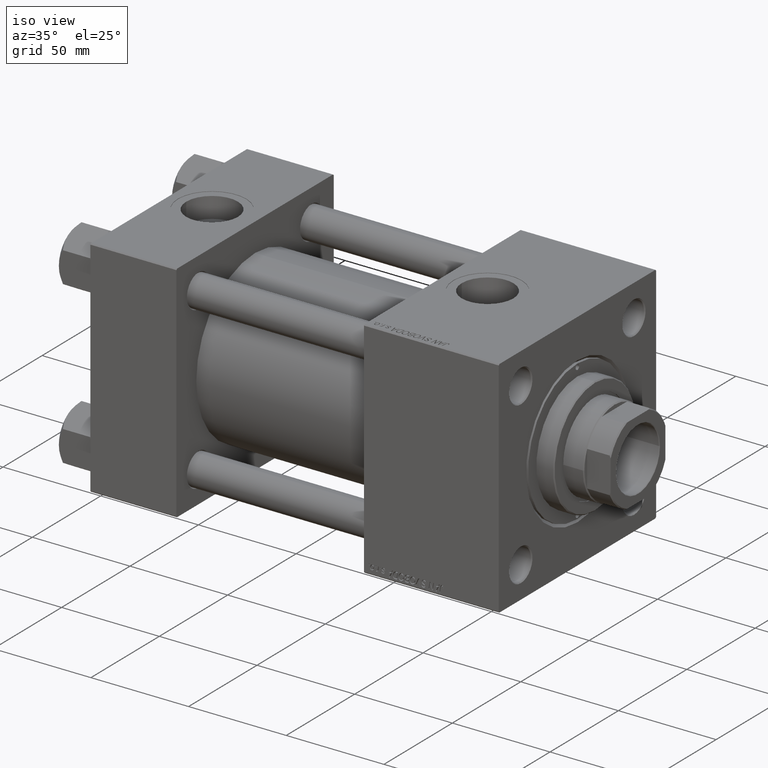
[diagram: clean part render]
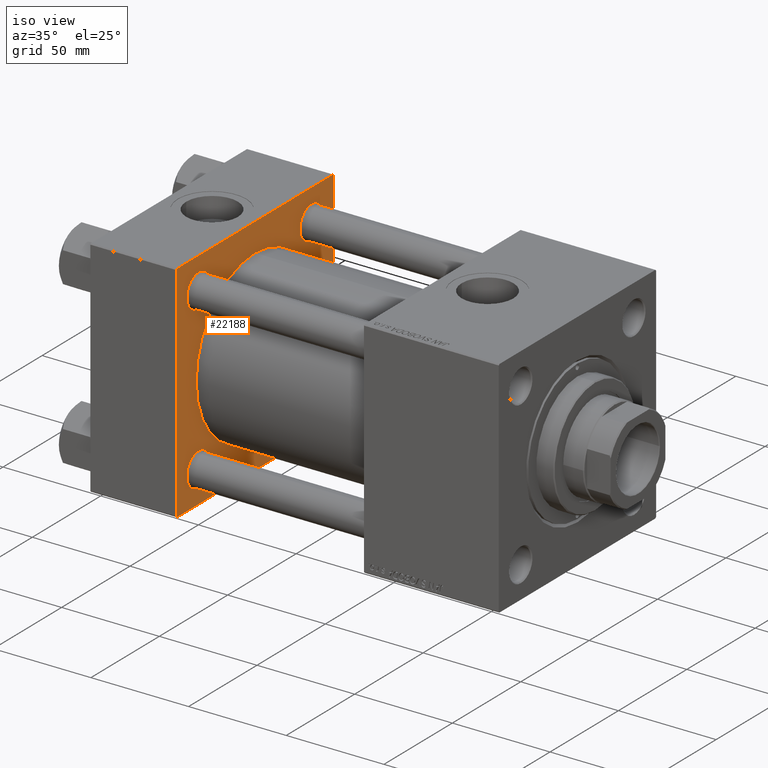
[diagram: same view with one face highlighted and labeled with its STEP entity id]
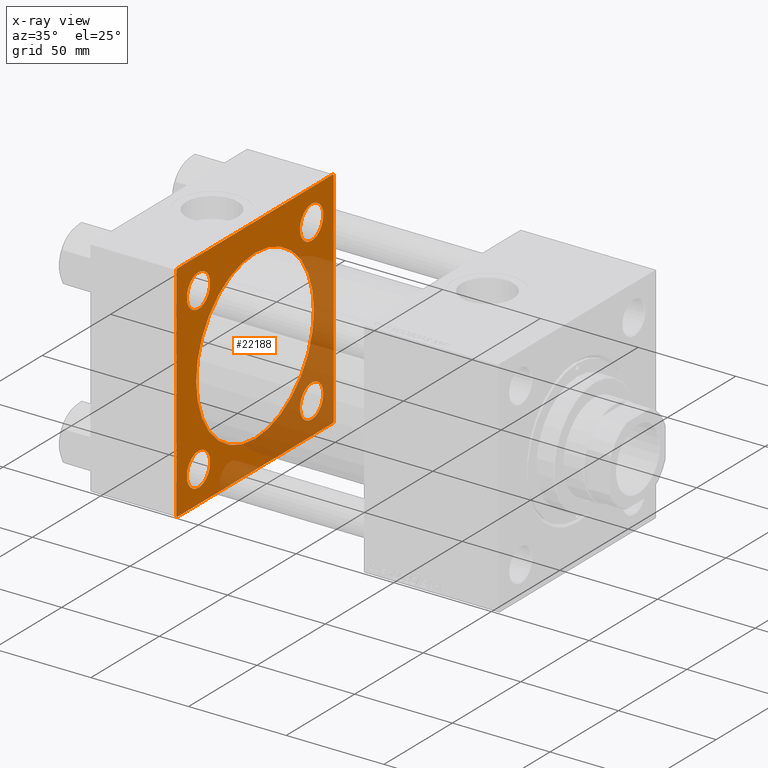
[diagram: x-ray of the same camera — body ghosted, the highlighted face saturated]
A machine part, iso view. The second image highlights one B-rep face of the part: STEP entity #22188.
The next image is the same camera in x-ray: the body ghosted, the highlighted face saturated — about 34% of this face is hidden behind the body in this view.
In plain terms, the highlighted planar face has unit normal (-1, 0, 0).
Its self-contained STEP definition (entity closure, byte-faithful):
#441 = AXIS2_PLACEMENT_3D ( 'NONE', #17049, #36836, #25272 ) ;
#616 = DIRECTION ( 'NONE',  ( -1.000000000000000000, 0.000000000000000000, -0.000000000000000000 ) ) ;
#867 = VERTEX_POINT ( 'NONE', #42806 ) ;
#1105 = CARTESIAN_POINT ( 'NONE',  ( 44.00000000000000000, 57.49999999999999289, -57.00000000000000711 ) ) ;
#1418 = LINE ( 'NONE', #36351, #20701 ) ;
#1678 = CARTESIAN_POINT ( 'NONE',  ( 44.00000000000000000, -41.34999999999998721, 32.85000000000000142 ) ) ;
#2090 = ORIENTED_EDGE ( 'NONE', *, *, #38002, .T. ) ;
#2094 = EDGE_CURVE ( 'NONE', #13009, #36170, #38209, .T. ) ;
#2280 = VERTEX_POINT ( 'NONE', #11557 ) ;
#2304 = DIRECTION ( 'NONE',  ( -1.000000000000000000, 0.000000000000000000, -0.000000000000000000 ) ) ;
#2826 = AXIS2_PLACEMENT_3D ( 'NONE', #31763, #48455, #40748 ) ;
#3234 = DIRECTION ( 'NONE',  ( 0.000000000000000000, 0.000000000000000000, 1.000000000000000000 ) ) ;
#3920 = AXIS2_PLACEMENT_3D ( 'NONE', #28656, #5528, #13738 ) ;
#4526 = DIRECTION ( 'NONE',  ( 0.000000000000000000, 0.7071067811865474617, -0.7071067811865474617 ) ) ;
#4589 = VERTEX_POINT ( 'NONE', #19703 ) ;
#4969 = ORIENTED_EDGE ( 'NONE', *, *, #37027, .T. ) ;
#5130 = CARTESIAN_POINT ( 'NONE',  ( 44.00000000000000000, 57.49999999999999289, 57.50000000000000711 ) ) ;
#5527 = DIRECTION ( 'NONE',  ( 0.000000000000000000, -1.000000000000000000, -1.206764157201257045E-16 ) ) ;
#5528 = DIRECTION ( 'NONE',  ( -1.000000000000000000, 0.000000000000000000, -0.000000000000000000 ) ) ;
#5662 = EDGE_LOOP ( 'NONE', ( #33018, #31141 ) ) ;
#6032 = AXIS2_PLACEMENT_3D ( 'NONE', #24947, #48336, #12615 ) ;
#6335 = VERTEX_POINT ( 'NONE', #43105 ) ;
#6501 = CARTESIAN_POINT ( 'NONE',  ( 44.00000000000000000, 0.000000000000000000, 0.000000000000000000 ) ) ;
#6566 = VERTEX_POINT ( 'NONE', #6610 ) ;
#6610 = CARTESIAN_POINT ( 'NONE',  ( 44.00000000000000000, -41.34999999999998721, -49.85000000000002274 ) ) ;
#6798 = CARTESIAN_POINT ( 'NONE',  ( 44.00000000000000000, 57.00000000000002132, -57.49999999999999289 ) ) ;
#6818 = ORIENTED_EDGE ( 'NONE', *, *, #43198, .T. ) ;
#7000 = FACE_BOUND ( 'NONE', #5662, .T. ) ;
#7532 = DIRECTION ( 'NONE',  ( 0.000000000000000000, 0.000000000000000000, 1.000000000000000000 ) ) ;
#7978 = DIRECTION ( 'NONE',  ( 0.000000000000000000, 0.000000000000000000, -1.000000000000000000 ) ) ;
#8248 = CARTESIAN_POINT ( 'NONE',  ( 44.00000000000000000, -41.34999999999998721, 49.85000000000002274 ) ) ;
#8261 = CARTESIAN_POINT ( 'NONE',  ( 44.00000000000000000, 57.00000000000000711, 57.50000000000000711 ) ) ;
#8468 = EDGE_CURVE ( 'NONE', #17674, #6335, #13119, .T. ) ;
#8870 = EDGE_CURVE ( 'NONE', #31794, #45250, #11197, .T. ) ;
#9631 = EDGE_LOOP ( 'NONE', ( #29601, #6818, #10863, #4969, #13283, #41761, #37084, #33340 ) ) ;
#10039 = EDGE_CURVE ( 'NONE', #2280, #15497, #28767, .T. ) ;
#10352 = FACE_OUTER_BOUND ( 'NONE', #9631, .T. ) ;
#10430 = VERTEX_POINT ( 'NONE', #6798 ) ;
#10863 = ORIENTED_EDGE ( 'NONE', *, *, #10039, .F. ) ;
#10942 = CARTESIAN_POINT ( 'NONE',  ( 44.00000000000000000, -41.34999999999998721, -41.35000000000000853 ) ) ;
#11197 = CIRCLE ( 'NONE', #41594, 8.500000000000007105 ) ;
#11557 = CARTESIAN_POINT ( 'NONE',  ( 44.00000000000000000, 57.49999999999999289, 57.00000000000003553 ) ) ;
#11561 = DIRECTION ( 'NONE',  ( -0.000000000000000000, 0.7071067811865376918, 0.7071067811865573427 ) ) ;
#12299 = CARTESIAN_POINT ( 'NONE',  ( 44.00000000000000000, -41.34999999999998721, -32.85000000000000142 ) ) ;
#12325 = EDGE_CURVE ( 'NONE', #36170, #13009, #26103, .T. ) ;
#12463 = CARTESIAN_POINT ( 'NONE',  ( 44.00000000000000000, -57.50000000000000711, 57.00000000000000711 ) ) ;
#12615 = DIRECTION ( 'NONE',  ( 0.000000000000000000, 0.000000000000000000, 1.000000000000000000 ) ) ;
#12866 = DIRECTION ( 'NONE',  ( 0.000000000000000000, 0.000000000000000000, -1.000000000000000000 ) ) ;
#13009 = VERTEX_POINT ( 'NONE', #8248 ) ;
#13119 = LINE ( 'NONE', #28548, #45698 ) ;
#13165 = VERTEX_POINT ( 'NONE', #49854 ) ;
#13283 = ORIENTED_EDGE ( 'NONE', *, *, #21937, .T. ) ;
#13577 = CARTESIAN_POINT ( 'NONE',  ( 44.00000000000000000, -41.34999999999998721, -41.35000000000000853 ) ) ;
#13674 = FACE_BOUND ( 'NONE', #28418, .T. ) ;
#13738 = DIRECTION ( 'NONE',  ( 0.000000000000000000, 0.000000000000000000, 1.000000000000000000 ) ) ;
#14449 = PLANE ( 'NONE',  #28068 ) ;
#14695 = DIRECTION ( 'NONE',  ( -0.000000000000000000, 0.000000000000000000, 1.000000000000000000 ) ) ;
#14991 = VERTEX_POINT ( 'NONE', #12299 ) ;
#15084 = CIRCLE ( 'NONE', #6032, 8.500000000000007105 ) ;
#15496 = CARTESIAN_POINT ( 'NONE',  ( 44.00000000000000000, 41.34999999999999432, -32.84999999999999432 ) ) ;
#15497 = VERTEX_POINT ( 'NONE', #1105 ) ;
#15826 = CARTESIAN_POINT ( 'NONE',  ( 44.00000000000000000, 41.34999999999999432, -41.35000000000000142 ) ) ;
#15968 = CARTESIAN_POINT ( 'NONE',  ( 44.00000000000000000, -57.50000000000000711, 57.00000000000000711 ) ) ;
#16731 = CIRCLE ( 'NONE', #29888, 8.500000000000007105 ) ;
#17049 = CARTESIAN_POINT ( 'NONE',  ( 44.00000000000000000, -41.34999999999998721, 41.35000000000000853 ) ) ;
#17674 = VERTEX_POINT ( 'NONE', #12463 ) ;
#18386 = EDGE_LOOP ( 'NONE', ( #30575, #26979 ) ) ;
#19024 = CARTESIAN_POINT ( 'NONE',  ( 44.00000000000000000, 57.49999999999999289, -57.00000000000000711 ) ) ;
#19097 = CARTESIAN_POINT ( 'NONE',  ( 44.00000000000000000, 41.34999999999999432, 41.35000000000000142 ) ) ;
#19297 = EDGE_CURVE ( 'NONE', #6335, #23335, #39225, .T. ) ;
#19337 = LINE ( 'NONE', #15968, #31113 ) ;
#19628 = DIRECTION ( 'NONE',  ( 0.000000000000000000, 0.000000000000000000, 1.000000000000000000 ) ) ;
#19703 = CARTESIAN_POINT ( 'NONE',  ( 44.00000000000000000, -2.602085213965210642E-15, 43.00000000000000000 ) ) ;
#19806 = DIRECTION ( 'NONE',  ( 0.000000000000000000, -0.7071067811865573427, 0.7071067811865376918 ) ) ;
#19937 = DIRECTION ( 'NONE',  ( 0.000000000000000000, 0.000000000000000000, 1.000000000000000000 ) ) ;
#20701 = VECTOR ( 'NONE', #5527, 1000.000000000000000 ) ;
#21864 = ORIENTED_EDGE ( 'NONE', *, *, #26630, .F. ) ;
#21923 = FACE_BOUND ( 'NONE', #18386, .T. ) ;
#21937 = EDGE_CURVE ( 'NONE', #35444, #867, #1418, .T. ) ;
#22188 = ADVANCED_FACE ( 'NONE', ( #13674, #7000, #45294, #21923, #42199, #10352 ), #14449, .F. ) ;
#22351 = DIRECTION ( 'NONE',  ( 0.000000000000000000, 0.000000000000000000, 1.000000000000000000 ) ) ;
#23244 = CIRCLE ( 'NONE', #31398, 8.500000000000007105 ) ;
#23335 = VERTEX_POINT ( 'NONE', #33430 ) ;
#23958 = VECTOR ( 'NONE', #4526, 1000.000000000000114 ) ;
#24512 = LINE ( 'NONE', #25275, #42612 ) ;
#24584 = EDGE_CURVE ( 'NONE', #29683, #26337, #23244, .T. ) ;
#24947 = CARTESIAN_POINT ( 'NONE',  ( 44.00000000000000000, 41.34999999999999432, 41.35000000000000142 ) ) ;
#25272 = DIRECTION ( 'NONE',  ( 0.000000000000000000, 0.000000000000000000, 1.000000000000000000 ) ) ;
#25275 = CARTESIAN_POINT ( 'NONE',  ( 44.00000000000000000, 57.49999999999999289, -57.49999999999999289 ) ) ;
#25583 = LINE ( 'NONE', #8261, #46488 ) ;
#25766 = DIRECTION ( 'NONE',  ( -1.000000000000000000, 0.000000000000000000, -0.000000000000000000 ) ) ;
#26103 = CIRCLE ( 'NONE', #3920, 8.500000000000007105 ) ;
#26337 = VERTEX_POINT ( 'NONE', #31624 ) ;
#26528 = EDGE_CURVE ( 'NONE', #45250, #31794, #16731, .T. ) ;
#26630 = EDGE_CURVE ( 'NONE', #4589, #13165, #33985, .T. ) ;
#26979 = ORIENTED_EDGE ( 'NONE', *, *, #50565, .T. ) ;
#26996 = LINE ( 'NONE', #19024, #36863 ) ;
#27491 = EDGE_CURVE ( 'NONE', #14991, #6566, #34824, .T. ) ;
#27886 = ORIENTED_EDGE ( 'NONE', *, *, #2094, .T. ) ;
#28068 = AXIS2_PLACEMENT_3D ( 'NONE', #6501, #25766, #14695 ) ;
#28309 = DIRECTION ( 'NONE',  ( -0.000000000000000000, -0.7071067811865376918, -0.7071067811865573427 ) ) ;
#28418 = EDGE_LOOP ( 'NONE', ( #2090, #50555 ) ) ;
#28548 = CARTESIAN_POINT ( 'NONE',  ( 44.00000000000000000, -57.50000000000000711, 57.49999999999999289 ) ) ;
#28628 = DIRECTION ( 'NONE',  ( 0.000000000000000000, -1.000000000000000000, -1.206764157201257045E-16 ) ) ;
#28656 = CARTESIAN_POINT ( 'NONE',  ( 44.00000000000000000, -41.34999999999998721, 41.35000000000000853 ) ) ;
#28767 = LINE ( 'NONE', #5130, #30922 ) ;
#29601 = ORIENTED_EDGE ( 'NONE', *, *, #42743, .F. ) ;
#29683 = VERTEX_POINT ( 'NONE', #43851 ) ;
#29888 = AXIS2_PLACEMENT_3D ( 'NONE', #15826, #47176, #19937 ) ;
#30498 = ORIENTED_EDGE ( 'NONE', *, *, #46521, .F. ) ;
#30575 = ORIENTED_EDGE ( 'NONE', *, *, #24584, .T. ) ;
#30803 = CARTESIAN_POINT ( 'NONE',  ( 44.00000000000000000, -2.602085213965210642E-15, 0.000000000000000000 ) ) ;
#30922 = VECTOR ( 'NONE', #7978, 1000.000000000000000 ) ;
#31113 = VECTOR ( 'NONE', #28309, 1000.000000000000114 ) ;
#31141 = ORIENTED_EDGE ( 'NONE', *, *, #8870, .T. ) ;
#31398 = AXIS2_PLACEMENT_3D ( 'NONE', #19097, #42736, #7532 ) ;
#31423 = EDGE_LOOP ( 'NONE', ( #47503, #27886 ) ) ;
#31624 = CARTESIAN_POINT ( 'NONE',  ( 44.00000000000000000, 41.34999999999999432, 49.85000000000001563 ) ) ;
#31763 = CARTESIAN_POINT ( 'NONE',  ( 44.00000000000000000, -2.602085213965210642E-15, 0.000000000000000000 ) ) ;
#31794 = VERTEX_POINT ( 'NONE', #15496 ) ;
#32571 = AXIS2_PLACEMENT_3D ( 'NONE', #10942, #42285, #3234 ) ;
#33018 = ORIENTED_EDGE ( 'NONE', *, *, #26528, .T. ) ;
#33054 = CARTESIAN_POINT ( 'NONE',  ( 44.00000000000000000, 41.34999999999999432, -49.85000000000001563 ) ) ;
#33340 = ORIENTED_EDGE ( 'NONE', *, *, #19297, .T. ) ;
#33368 = DIRECTION ( 'NONE',  ( 0.000000000000000000, 0.000000000000000000, 1.000000000000000000 ) ) ;
#33430 = CARTESIAN_POINT ( 'NONE',  ( 44.00000000000000000, -57.00000000000000711, -57.50000000000000711 ) ) ;
#33654 = EDGE_LOOP ( 'NONE', ( #21864, #30498 ) ) ;
#33985 = CIRCLE ( 'NONE', #2826, 43.00000000000000000 ) ;
#34824 = CIRCLE ( 'NONE', #47940, 8.500000000000007105 ) ;
#35444 = VERTEX_POINT ( 'NONE', #50392 ) ;
#36170 = VERTEX_POINT ( 'NONE', #1678 ) ;
#36351 = CARTESIAN_POINT ( 'NONE',  ( 44.00000000000000000, 57.49999999999999289, 57.50000000000000711 ) ) ;
#36836 = DIRECTION ( 'NONE',  ( -1.000000000000000000, 0.000000000000000000, -0.000000000000000000 ) ) ;
#36863 = VECTOR ( 'NONE', #11561, 1000.000000000000114 ) ;
#37027 = EDGE_CURVE ( 'NONE', #2280, #35444, #25583, .T. ) ;
#37084 = ORIENTED_EDGE ( 'NONE', *, *, #8468, .T. ) ;
#38002 = EDGE_CURVE ( 'NONE', #6566, #14991, #44060, .T. ) ;
#38024 = DIRECTION ( 'NONE',  ( 1.000000000000000000, -0.000000000000000000, 0.000000000000000000 ) ) ;
#38209 = CIRCLE ( 'NONE', #441, 8.500000000000007105 ) ;
#39225 = LINE ( 'NONE', #47675, #23958 ) ;
#39406 = CARTESIAN_POINT ( 'NONE',  ( 44.00000000000000000, 41.34999999999999432, -41.35000000000000142 ) ) ;
#40748 = DIRECTION ( 'NONE',  ( 0.000000000000000000, 0.000000000000000000, 1.000000000000000000 ) ) ;
#41594 = AXIS2_PLACEMENT_3D ( 'NONE', #39406, #616, #19628 ) ;
#41761 = ORIENTED_EDGE ( 'NONE', *, *, #43674, .T. ) ;
#42199 = FACE_BOUND ( 'NONE', #33654, .T. ) ;
#42285 = DIRECTION ( 'NONE',  ( -1.000000000000000000, 0.000000000000000000, -0.000000000000000000 ) ) ;
#42612 = VECTOR ( 'NONE', #28628, 1000.000000000000000 ) ;
#42736 = DIRECTION ( 'NONE',  ( -1.000000000000000000, 0.000000000000000000, -0.000000000000000000 ) ) ;
#42743 = EDGE_CURVE ( 'NONE', #10430, #23335, #24512, .T. ) ;
#42806 = CARTESIAN_POINT ( 'NONE',  ( 44.00000000000000000, -57.00000000000003553, 57.49999999999999289 ) ) ;
#43105 = CARTESIAN_POINT ( 'NONE',  ( 44.00000000000000000, -57.50000000000000711, -57.00000000000000711 ) ) ;
#43198 = EDGE_CURVE ( 'NONE', #10430, #15497, #26996, .T. ) ;
#43674 = EDGE_CURVE ( 'NONE', #867, #17674, #19337, .T. ) ;
#43851 = CARTESIAN_POINT ( 'NONE',  ( 44.00000000000000000, 41.34999999999999432, 32.84999999999999432 ) ) ;
#44060 = CIRCLE ( 'NONE', #32571, 8.500000000000007105 ) ;
#44460 = CIRCLE ( 'NONE', #49394, 43.00000000000000000 ) ;
#45250 = VERTEX_POINT ( 'NONE', #33054 ) ;
#45294 = FACE_BOUND ( 'NONE', #31423, .T. ) ;
#45698 = VECTOR ( 'NONE', #12866, 1000.000000000000000 ) ;
#46488 = VECTOR ( 'NONE', #19806, 1000.000000000000114 ) ;
#46521 = EDGE_CURVE ( 'NONE', #13165, #4589, #44460, .T. ) ;
#47176 = DIRECTION ( 'NONE',  ( -1.000000000000000000, 0.000000000000000000, -0.000000000000000000 ) ) ;
#47503 = ORIENTED_EDGE ( 'NONE', *, *, #12325, .T. ) ;
#47675 = CARTESIAN_POINT ( 'NONE',  ( 44.00000000000000000, -57.00000000000000711, -57.50000000000000711 ) ) ;
#47940 = AXIS2_PLACEMENT_3D ( 'NONE', #13577, #2304, #33368 ) ;
#48336 = DIRECTION ( 'NONE',  ( -1.000000000000000000, 0.000000000000000000, -0.000000000000000000 ) ) ;
#48455 = DIRECTION ( 'NONE',  ( 1.000000000000000000, -0.000000000000000000, 0.000000000000000000 ) ) ;
#49394 = AXIS2_PLACEMENT_3D ( 'NONE', #30803, #38024, #22351 ) ;
#49854 = CARTESIAN_POINT ( 'NONE',  ( 44.00000000000000000, 2.663896022368408223E-15, -43.00000000000000000 ) ) ;
#50392 = CARTESIAN_POINT ( 'NONE',  ( 44.00000000000000000, 57.00000000000000711, 57.50000000000000711 ) ) ;
#50555 = ORIENTED_EDGE ( 'NONE', *, *, #27491, .T. ) ;
#50565 = EDGE_CURVE ( 'NONE', #26337, #29683, #15084, .T. ) ;